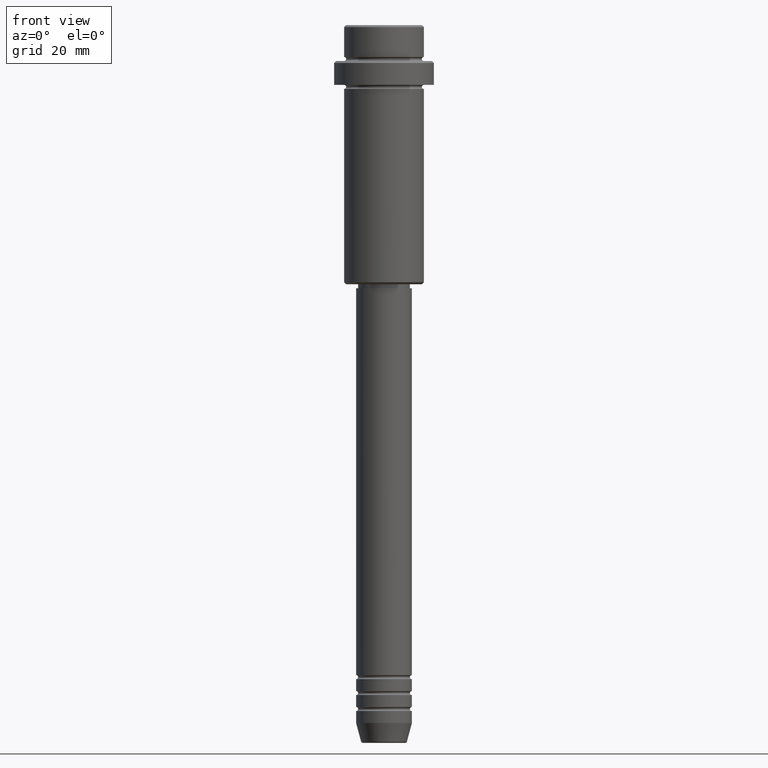
[diagram: clean part render]
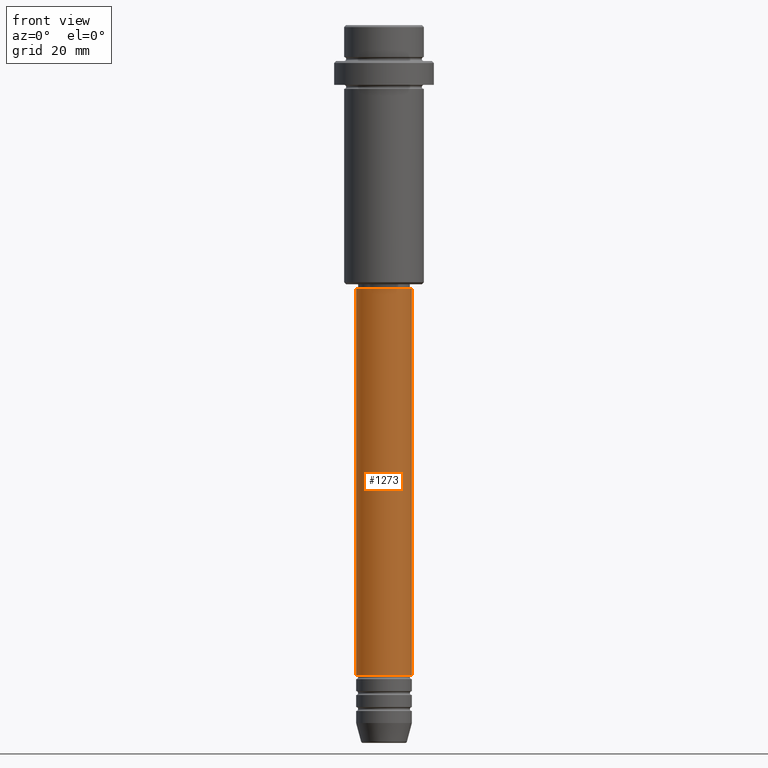
[diagram: same view with one face highlighted and labeled with its STEP entity id]
A machine part, front view. The second image highlights one B-rep face of the part: STEP entity #1273.
In plain terms, the highlighted cylindrical surface (edge-blend (fillet) strip) has radius 7 mm, axis along (-0, -0, 1).
Its self-contained STEP definition (entity closure, byte-faithful):
#7 = AXIS2_PLACEMENT_3D ( 'NONE', #1230, #254, #681 ) ;
#49 = LINE ( 'NONE', #593, #805 ) ;
#85 = DIRECTION ( 'NONE',  ( -0.000000000000000000, -0.000000000000000000, 1.000000000000000000 ) ) ;
#153 = VERTEX_POINT ( 'NONE', #1348 ) ;
#175 = DIRECTION ( 'NONE',  ( 1.000000000000000000, 0.000000000000000000, 0.000000000000000000 ) ) ;
#216 = LINE ( 'NONE', #534, #1002 ) ;
#254 = DIRECTION ( 'NONE',  ( -0.000000000000000000, -0.000000000000000000, 1.000000000000000000 ) ) ;
#266 = CYLINDRICAL_SURFACE ( 'NONE', #7, 7.000000000000000000 ) ;
#293 = EDGE_CURVE ( 'NONE', #993, #339, #860, .T. ) ;
#321 = EDGE_CURVE ( 'NONE', #339, #153, #216, .T. ) ;
#335 = ORIENTED_EDGE ( 'NONE', *, *, #321, .T. ) ;
#339 = VERTEX_POINT ( 'NONE', #638 ) ;
#347 = AXIS2_PLACEMENT_3D ( 'NONE', #1159, #1152, #175 ) ;
#369 = FACE_OUTER_BOUND ( 'NONE', #655, .T. ) ;
#382 = EDGE_CURVE ( 'NONE', #1359, #153, #1284, .T. ) ;
#489 = DIRECTION ( 'NONE',  ( -0.000000000000000000, -0.000000000000000000, 1.000000000000000000 ) ) ;
#534 = CARTESIAN_POINT ( 'NONE',  ( 7.000000000000000000, 0.000000000000000000, 0.000000000000000000 ) ) ;
#593 = CARTESIAN_POINT ( 'NONE',  ( -7.000000000000000000, 8.572527594031473190E-16, 0.000000000000000000 ) ) ;
#638 = CARTESIAN_POINT ( 'NONE',  ( 7.000000000000000000, 0.000000000000000000, -162.9999999999998579 ) ) ;
#655 = EDGE_LOOP ( 'NONE', ( #960, #779, #335, #936 ) ) ;
#674 = DIRECTION ( 'NONE',  ( -0.000000000000000000, -0.000000000000000000, 1.000000000000000000 ) ) ;
#681 = DIRECTION ( 'NONE',  ( 1.000000000000000000, 0.000000000000000000, 0.000000000000000000 ) ) ;
#746 = CARTESIAN_POINT ( 'NONE',  ( -7.000000000000000000, 8.572527594031473190E-16, -66.00000000000000000 ) ) ;
#779 = ORIENTED_EDGE ( 'NONE', *, *, #293, .T. ) ;
#805 = VECTOR ( 'NONE', #489, 1000.000000000000000 ) ;
#860 = CIRCLE ( 'NONE', #347, 7.000000000000000000 ) ;
#936 = ORIENTED_EDGE ( 'NONE', *, *, #382, .F. ) ;
#960 = ORIENTED_EDGE ( 'NONE', *, *, #1294, .F. ) ;
#993 = VERTEX_POINT ( 'NONE', #1182 ) ;
#1002 = VECTOR ( 'NONE', #85, 1000.000000000000000 ) ;
#1152 = DIRECTION ( 'NONE',  ( -0.000000000000000000, -0.000000000000000000, 1.000000000000000000 ) ) ;
#1159 = CARTESIAN_POINT ( 'NONE',  ( 0.000000000000000000, 0.000000000000000000, -162.9999999999998579 ) ) ;
#1182 = CARTESIAN_POINT ( 'NONE',  ( -7.000000000000000000, 8.572527594031473190E-16, -162.9999999999998579 ) ) ;
#1225 = CARTESIAN_POINT ( 'NONE',  ( 0.000000000000000000, 0.000000000000000000, -66.00000000000000000 ) ) ;
#1230 = CARTESIAN_POINT ( 'NONE',  ( 0.000000000000000000, 0.000000000000000000, 0.000000000000000000 ) ) ;
#1273 = ADVANCED_FACE ( 'NONE', ( #369 ), #266, .T. ) ;
#1284 = CIRCLE ( 'NONE', #1398, 7.000000000000000000 ) ;
#1294 = EDGE_CURVE ( 'NONE', #993, #1359, #49, .T. ) ;
#1348 = CARTESIAN_POINT ( 'NONE',  ( 7.000000000000000000, 0.000000000000000000, -66.00000000000000000 ) ) ;
#1352 = DIRECTION ( 'NONE',  ( 1.000000000000000000, 0.000000000000000000, 0.000000000000000000 ) ) ;
#1359 = VERTEX_POINT ( 'NONE', #746 ) ;
#1398 = AXIS2_PLACEMENT_3D ( 'NONE', #1225, #674, #1352 ) ;